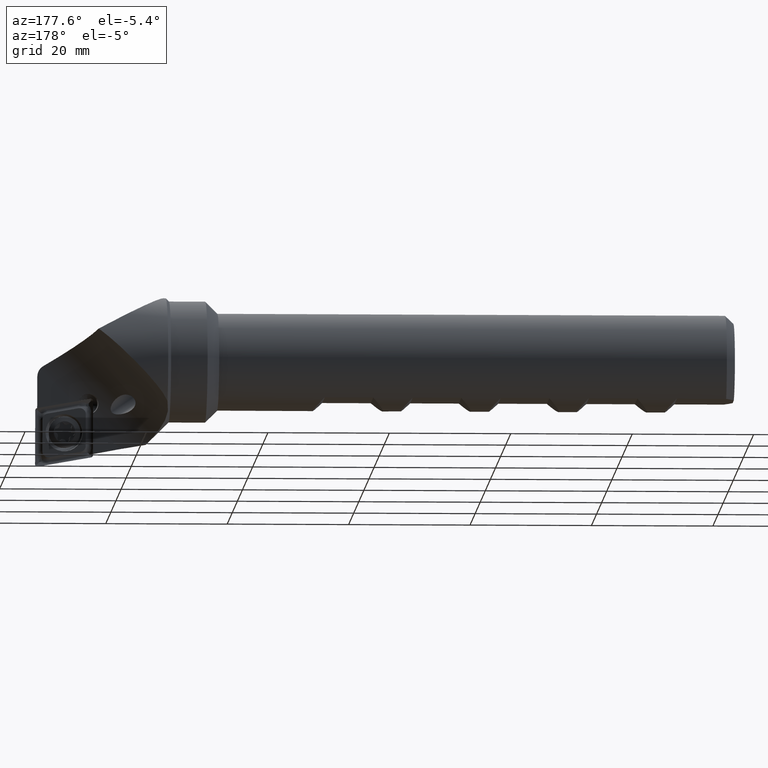
[diagram: clean part render]
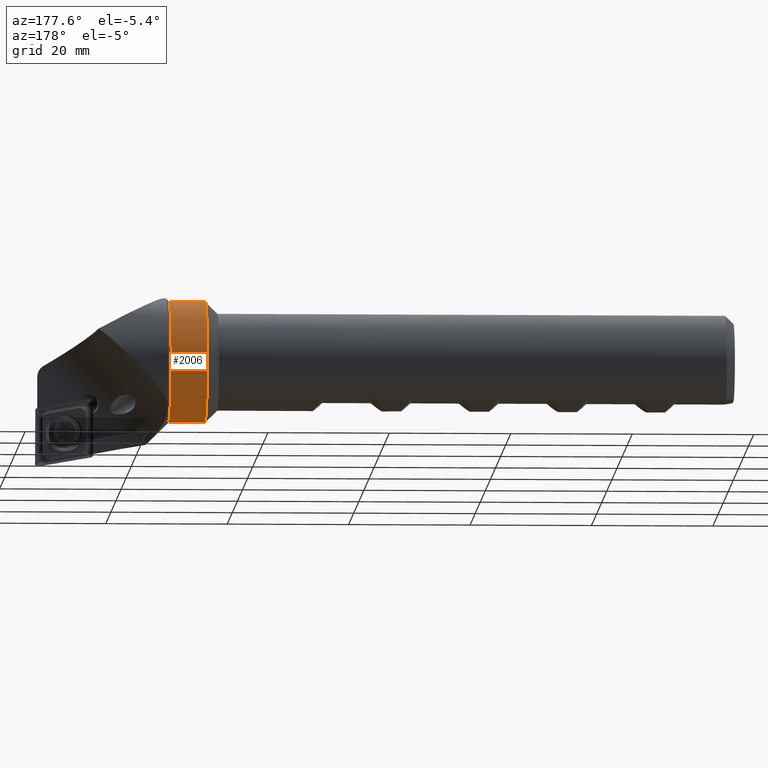
[diagram: same view with one face highlighted and labeled with its STEP entity id]
A machine part, auxiliary view. The second image highlights one B-rep face of the part: STEP entity #2006.
In plain terms, the highlighted cylindrical surface (bore or boss wall) has radius 10 mm, axis along (-1, -0, -0).
Its self-contained STEP definition (entity closure, byte-faithful):
#219 = EDGE_LOOP ( 'NONE', ( #1230 ) ) ;
#355 = CIRCLE ( 'NONE', #3475, 10.00000000000000000 ) ;
#535 = ORIENTED_EDGE ( 'NONE', *, *, #2220, .T. ) ;
#542 = VERTEX_POINT ( 'NONE', #1269 ) ;
#653 = CARTESIAN_POINT ( 'NONE',  ( 87.00000000000000000, 0.0000000000000000000, 10.00000000000000000 ) ) ;
#971 = CARTESIAN_POINT ( 'NONE',  ( -3.175455607189903200, 0.0000000000000000000, 0.0000000000000000000 ) ) ;
#1205 = FACE_OUTER_BOUND ( 'NONE', #219, .T. ) ;
#1230 = ORIENTED_EDGE ( 'NONE', *, *, #1325, .F. ) ;
#1269 = CARTESIAN_POINT ( 'NONE',  ( 93.00000000000000000, 0.0000000000000000000, 10.00000000000000000 ) ) ;
#1320 = DIRECTION ( 'NONE',  ( -1.000000000000000000, -0.0000000000000000000, -0.0000000000000000000 ) ) ;
#1325 = EDGE_CURVE ( 'NONE', #1904, #1904, #355, .T. ) ;
#1454 = CYLINDRICAL_SURFACE ( 'NONE', #3573, 10.00000000000000000 ) ;
#1495 = AXIS2_PLACEMENT_3D ( 'NONE', #2866, #3162, #2882 ) ;
#1648 = CARTESIAN_POINT ( 'NONE',  ( 87.00000000000000000, 0.0000000000000000000, 0.0000000000000000000 ) ) ;
#1904 = VERTEX_POINT ( 'NONE', #653 ) ;
#1927 = DIRECTION ( 'NONE',  ( 0.0000000000000000000, 0.0000000000000000000, 1.000000000000000000 ) ) ;
#2006 = ADVANCED_FACE ( 'NONE', ( #1205, #3806 ), #1454, .T. ) ;
#2220 = EDGE_CURVE ( 'NONE', #542, #542, #3597, .T. ) ;
#2555 = DIRECTION ( 'NONE',  ( -1.000000000000000000, -0.0000000000000000000, -0.0000000000000000000 ) ) ;
#2855 = DIRECTION ( 'NONE',  ( 0.0000000000000000000, 0.0000000000000000000, 1.000000000000000000 ) ) ;
#2866 = CARTESIAN_POINT ( 'NONE',  ( 93.00000000000000000, 0.0000000000000000000, 0.0000000000000000000 ) ) ;
#2882 = DIRECTION ( 'NONE',  ( 0.0000000000000000000, 0.0000000000000000000, 1.000000000000000000 ) ) ;
#3039 = EDGE_LOOP ( 'NONE', ( #535 ) ) ;
#3162 = DIRECTION ( 'NONE',  ( -1.000000000000000000, -0.0000000000000000000, -0.0000000000000000000 ) ) ;
#3475 = AXIS2_PLACEMENT_3D ( 'NONE', #1648, #2555, #2855 ) ;
#3573 = AXIS2_PLACEMENT_3D ( 'NONE', #971, #1320, #1927 ) ;
#3597 = CIRCLE ( 'NONE', #1495, 10.00000000000000000 ) ;
#3806 = FACE_OUTER_BOUND ( 'NONE', #3039, .T. ) ;